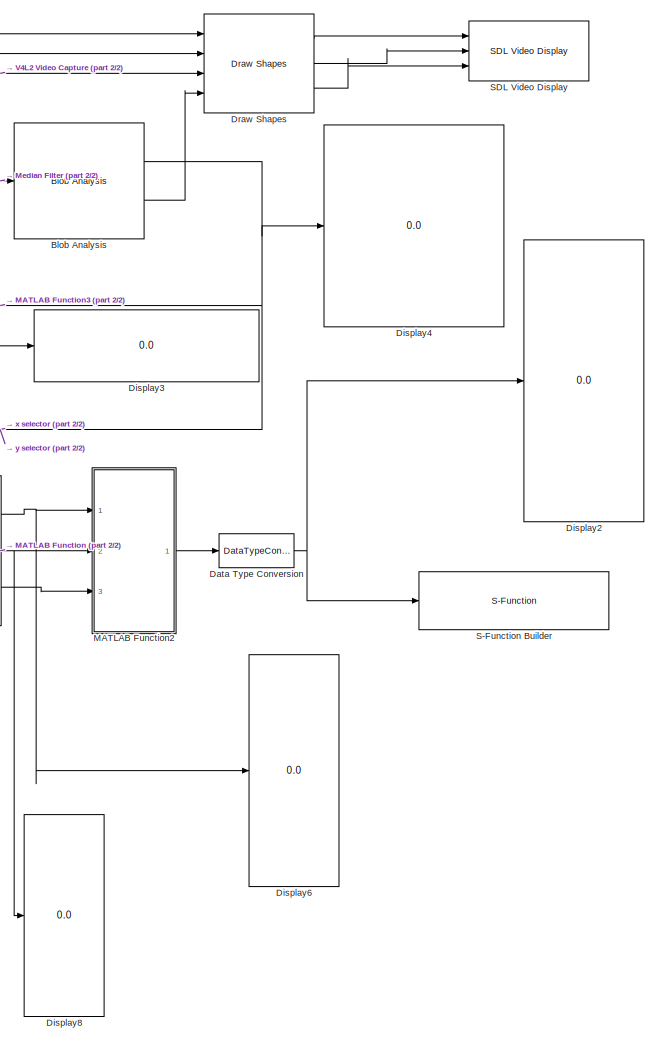
[diagram: root canvas - part 1/2, right side, full height]
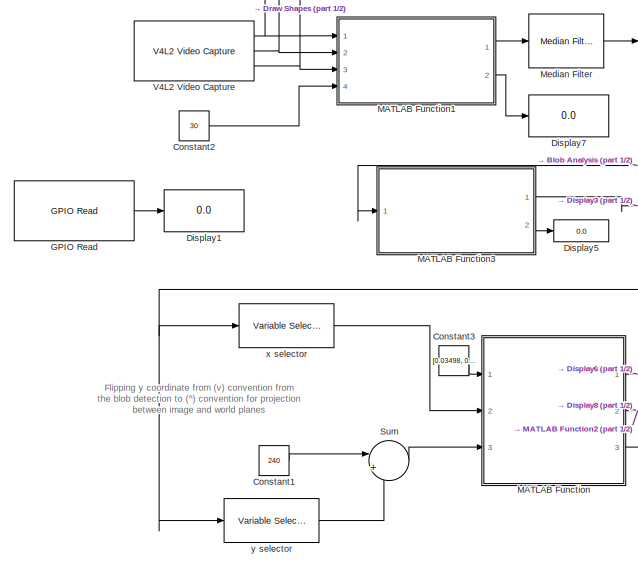
[diagram: root canvas - part 2/2, middle left region]
MODEL slx_a7a07649d16a
KIND model
BLOCK [Reference] Blob Analysis  REF=visionstatistics/Blob Analysis
  LockScale = off
  Ports = [1, 2]
  SourceBlock = visionstatistics/Blob Analysis
  SourceType = Blob Analysis
  Tag = vipblks_row_conv
  accumFracLength = 0
  accumMode = Binary point scaling
  accumWordLength = 32
  angle = off
  area = off
  bBox = on
  centroid = on
  conn = 8
  eccentricity = off
  equivDiameterSq = off
  excludeBorderBlob = on
  extent = off
  fillValues = -1
  firstCoeffFracLength = 14
  firstCoeffMode = Binary point scaling
  firstCoeffWordLength = 16
  isCount = off
  isFill = on
  isLabel = off
  isOutVarDim = off
  majorAxis = off
  maxArea = intmax('uint32')
  maxBlobs = 6
  memoryFracLength = 16
  memoryMode = Same as product output
  memoryWordLength = 32
  minArea = 25
  minorAxis = off
  outDT = single
  outputFracLength = 16
  outputMode = Binary point scaling
  outputWordLength = 32
  overflowMode = off
  perimeter = off
  prodOutputFracLength = 16
  prodOutputMode = Binary point scaling
  prodOutputWordLength = 32
  roundingMode = Floor
  secondCoeffFracLength = 16
  secondCoeffMode = Binary point scaling
  secondCoeffWordLength = 32
  useMaxArea = off
  useMinArea = on
  warnIfNumBlobsExceeded = off
BLOCK [Constant] Constant1
  OutDataTypeStr = single
  Value = 240
BLOCK [Constant] Constant2
  OutDataTypeStr = single
  Value = 30
BLOCK [Constant] Constant3
  OutDataTypeStr = single
  Value = [0.03498, 0.0001508, -4.339e-5; 0.001215, 0.01909, -0.001534; -5.776, 7.518, 0.4015]
  VectorParams1D = off
BLOCK [DataTypeConversion] Data Type Conversion
  OutDataTypeStr = uint8
  RndMeth = Floor
  SaturateOnIntegerOverflow = off
BLOCK [Display] Display1
  Decimation = 1
  Ports = [1]
BLOCK [Display] Display2
  Decimation = 1
  Ports = [1]
BLOCK [Display] Display3
  Commented = on
  Decimation = 1
  Ports = [1]
BLOCK [Display] Display4
  Decimation = 1
  Ports = [1]
BLOCK [Display] Display5
  Commented = on
  Decimation = 1
  Ports = [1]
BLOCK [Display] Display6
  Decimation = 1
  Ports = [1]
BLOCK [Display] Display7
  Commented = on
  Decimation = 1
  Ports = [1]
BLOCK [Display] Display8
  Decimation = 1
  Ports = [1]
BLOCK [Reference] Draw Shapes  REF=visiontextngfix/Draw Shapes
  LockScale = off
  Ports = [4, 3]
  SourceBlock = visiontextngfix/Draw Shapes
  SourceType = Draw Shapes
  accumFracLength = 14
  accumMode = Same as product output
  accumWordLength = 32
  antialiasing = off
  color = [0 0 0]
  display = User-specified value
  fill = off
  fillClrSource = Specify via dialog
  imagePorts = Separate color signals
  inType = Obsolete
  intensity = 200
  lineWidth = 1
  memoryFracLength = 15
  memoryMode = Specify word length
  memoryWordLength = 16
  opacity = 0.6
  overflowMode = off
  prodOutputFracLength = 14
  prodOutputMode = Binary point scaling
  prodOutputWordLength = 32
  roundingMode = Floor
  shape = Rectangles
  viewport = Entire image
BLOCK [Reference] GPIO Read  REF=embdlinuxlib/GPIO Read
  Ports = [0, 1]
  SourceBlock = embdlinuxlib/GPIO Read
  SourceType = GPIO Read
  blockPlatform = Raspberry Pi
  board = Model B Rev2
  direction = Input
  gpio = 4
  internalResistor = Off
  sampleTime = 0.1
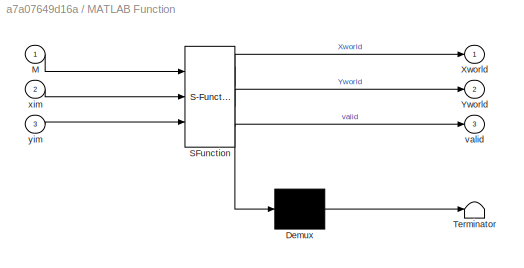
BLOCK [SubSystem] MATLAB Function
  ErrorFcn = Stateflow.Translate.translate
  PermitHierarchicalResolution = ExplicitOnly
  Ports = [3, 3]
  RequestExecContextInheritance = off
  SFBlockType = MATLAB Function
  TreatAsAtomicUnit = on
BLOCK [Demux] MATLAB Function/ Demux 
  Outputs = 1
  Ports = [1, 1]
BLOCK [S-Function] MATLAB Function/ SFunction 
  EnableBusSupport = on
  FunctionName = sf_sfun
  PortCounts = [3 4]
  Ports = [3, 4]
  Tag = Stateflow S-Function rpi_i2c_send 2
BLOCK [Terminator] MATLAB Function/ Terminator 
BLOCK [Inport] MATLAB Function/M
  IconDisplay = Port number
BLOCK [Outport] MATLAB Function/Xworld
  IconDisplay = Port number
BLOCK [Outport] MATLAB Function/Yworld
  IconDisplay = Port number
  Port = 2
BLOCK [Outport] MATLAB Function/valid
  IconDisplay = Port number
  Port = 3
BLOCK [Inport] MATLAB Function/xim
  IconDisplay = Port number
  Port = 2
BLOCK [Inport] MATLAB Function/yim
  IconDisplay = Port number
  Port = 3
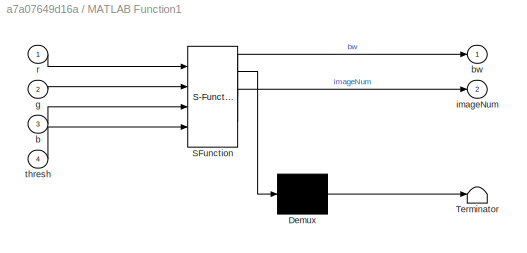
BLOCK [SubSystem] MATLAB Function1
  ErrorFcn = Stateflow.Translate.translate
  PermitHierarchicalResolution = ExplicitOnly
  Ports = [4, 2]
  RequestExecContextInheritance = off
  SFBlockType = MATLAB Function
  TreatAsAtomicUnit = on
BLOCK [Demux] MATLAB Function1/ Demux 
  Outputs = 1
  Ports = [1, 1]
BLOCK [S-Function] MATLAB Function1/ SFunction 
  EnableBusSupport = on
  FunctionName = sf_sfun
  PortCounts = [4 3]
  Ports = [4, 3]
  Tag = Stateflow S-Function rpi_i2c_send 1
BLOCK [Terminator] MATLAB Function1/ Terminator 
BLOCK [Inport] MATLAB Function1/b
  IconDisplay = Port number
  Port = 3
BLOCK [Outport] MATLAB Function1/bw
  IconDisplay = Port number
BLOCK [Inport] MATLAB Function1/g
  IconDisplay = Port number
  Port = 2
BLOCK [Outport] MATLAB Function1/imageNum
  IconDisplay = Port number
  Port = 2
BLOCK [Inport] MATLAB Function1/r
  IconDisplay = Port number
BLOCK [Inport] MATLAB Function1/thresh
  IconDisplay = Port number
  Port = 4
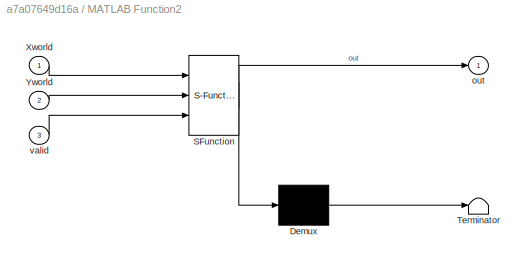
BLOCK [SubSystem] MATLAB Function2
  ErrorFcn = Stateflow.Translate.translate
  PermitHierarchicalResolution = ExplicitOnly
  Ports = [3, 1]
  RequestExecContextInheritance = off
  SFBlockType = MATLAB Function
  TreatAsAtomicUnit = on
BLOCK [Demux] MATLAB Function2/ Demux 
  Outputs = 1
  Ports = [1, 1]
BLOCK [S-Function] MATLAB Function2/ SFunction 
  EnableBusSupport = on
  FunctionName = sf_sfun
  PortCounts = [3 2]
  Ports = [3, 2]
  Tag = Stateflow S-Function rpi_i2c_send 3
BLOCK [Terminator] MATLAB Function2/ Terminator 
BLOCK [Inport] MATLAB Function2/Xworld
  IconDisplay = Port number
BLOCK [Inport] MATLAB Function2/Yworld
  IconDisplay = Port number
  Port = 2
BLOCK [Outport] MATLAB Function2/out
  IconDisplay = Port number
BLOCK [Inport] MATLAB Function2/valid
  IconDisplay = Port number
  Port = 3
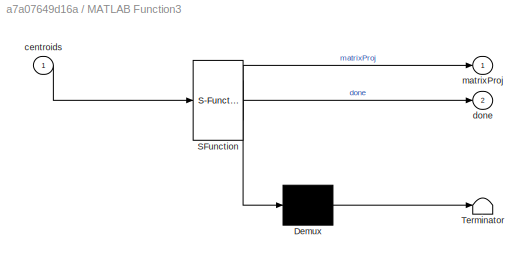
BLOCK [SubSystem] MATLAB Function3
  Commented = on
  ErrorFcn = Stateflow.Translate.translate
  PermitHierarchicalResolution = ExplicitOnly
  Ports = [1, 2]
  RequestExecContextInheritance = off
  SFBlockType = MATLAB Function
  TreatAsAtomicUnit = on
BLOCK [Demux] MATLAB Function3/ Demux 
  Outputs = 1
  Ports = [1, 1]
BLOCK [S-Function] MATLAB Function3/ SFunction 
  EnableBusSupport = on
  FunctionName = sf_sfun
  PortCounts = [1 3]
  Ports = [1, 3]
  Tag = Stateflow S-Function rpi_i2c_send 4
BLOCK [Terminator] MATLAB Function3/ Terminator 
BLOCK [Inport] MATLAB Function3/centroids
  IconDisplay = Port number
BLOCK [Outport] MATLAB Function3/done
  IconDisplay = Port number
  Port = 2
BLOCK [Outport] MATLAB Function3/matrixProj
  IconDisplay = Port number
BLOCK [Reference] Median Filter  REF=visionanalysis/Median Filter
  LockScale = off
  Ports = [1, 1]
  SourceBlock = visionanalysis/Median Filter
  SourceType = Median Filter
  accumFracLength = 30
  accumMode = Same as input
  accumWordLength = 32
  nghbood = [3 3]
  outSize = Same as input port I
  outputFracLength = 15
  outputMode = Same as input
  outputWordLength = 16
  overflowMode = off
  padSrc = Specify via dialog
  padType = Constant
  padVal = 0
  prodOutputFracLength = 30
  prodOutputMode = Same as input
  prodOutputWordLength = 32
  roundingMode = Floor
BLOCK [S-Function] S-Function Builder
  CopyFcn = set_param(gcbh,'LinkStatus','none')
  EnableBusSupport = off
  FunctionName = I2C_RPI_Send
  InitFcn = try, set_param(gcb,'FunctionName','I2C_RPI_Send'), end
  OpenFcn = sfunctionwizard(gcbh)
  Ports = [1]
  PreSaveFcn = try, set_param(gcb,'FunctionName','I2C_RPI_Send'), end
  SFunctionModules = I2C_RPI_Send_wrapper
BLOCK [Reference] SDL Video Display  REF=embdlinuxlib/SDL Video Display
  Ports = [3]
  SourceBlock = embdlinuxlib/SDL Video Display
  SourceType = SDL Video Display
  blockPlatform = Raspberry Pi
  pixelFormat = RGB
  pixelOrder = Planar
  rowMajor = on
BLOCK [Sum] Sum
  IconShape = round
  InputSameDT = off
  Inputs = |+-
  OutDataTypeStr = Inherit: Inherit via internal rule
  Ports = [2, 1]
  SaturateOnIntegerOverflow = off
BLOCK [Reference] V4L2 Video Capture  REF=embdlinuxlib/V4L2 Video Capture
  Ports = [0, 3]
  SourceBlock = embdlinuxlib/V4L2 Video Capture
  SourceType = V4L2 Video Capture
  blockPlatform = Raspberry Pi
  imSize = [640, 480]
  imSizeSelection = 320x240
  m_devName = '/dev/video0'
  pixelFormat = RGB
  pixelOrder = Planar
  roi = [0, 0, 640, 480]
  sampleTime = 1/10
  simOutput = Colorbars
BLOCK [Reference] x selector  REF=dspindex/Variable
Selector
  Elements = 2
  FillMode = on
  FillValues = 0
  IdxMode = Fixed
  NumInputs = 1
  Ports = [1, 1]
  ShowPortLabels = off
  SourceBlock = dspindex/Variable\nSelector
  SourceType = Variable Selector
  ZerOneIdxMode = One-based
  errmode = Generate Error
  rowsOrCols = Columns
BLOCK [Reference] y selector  REF=dspindex/Variable
Selector
  Elements = 1
  FillMode = on
  FillValues = 0
  IdxMode = Fixed
  NumInputs = 1
  Ports = [1, 1]
  ShowPortLabels = off
  SourceBlock = dspindex/Variable\nSelector
  SourceType = Variable Selector
  ZerOneIdxMode = One-based
  errmode = Generate Error
  rowsOrCols = Columns
ANNOTATION (root): Flipping y coordinate from (v) convention from the blob detection to (^) convention for projection between image and world planes
NET Blob Analysis:1 -> Display4:1, MATLAB Function3:1, x selector:1, y selector:1
LINE Blob Analysis:2 -> Draw Shapes:4
LINE Constant1:1 -> Sum:1
LINE Constant2:1 -> MATLAB Function1:4
LINE Constant3:1 -> MATLAB Function:1
NET Data Type Conversion:1 -> Display2:1, S-Function Builder:1
LINE Draw Shapes:1 -> SDL Video Display:1
LINE Draw Shapes:2 -> SDL Video Display:2
LINE Draw Shapes:3 -> SDL Video Display:3
LINE GPIO Read:1 -> Display1:1
LINE MATLAB Function1:1 -> Median Filter:1
LINE MATLAB Function1:2 -> Display7:1
LINE MATLAB Function2:1 -> Data Type Conversion:1
LINE MATLAB Function3:1 -> Display3:1
LINE MATLAB Function3:2 -> Display5:1
NET MATLAB Function:1 -> Display6:1, MATLAB Function2:1
NET MATLAB Function:2 -> Display8:1, MATLAB Function2:2
LINE MATLAB Function:3 -> MATLAB Function2:3
LINE Median Filter:1 -> Blob Analysis:1
LINE Sum:1 -> MATLAB Function:3
NET V4L2 Video Capture:1 -> Draw Shapes:1, MATLAB Function1:1
NET V4L2 Video Capture:2 -> Draw Shapes:2, MATLAB Function1:2
NET V4L2 Video Capture:3 -> Draw Shapes:3, MATLAB Function1:3
LINE x selector:1 -> MATLAB Function:2
LINE y selector:1 -> Sum:2
note: NET lines group one-source signal fan-out (src -> all destinations, sorted); 1:1 wires keep LINE
